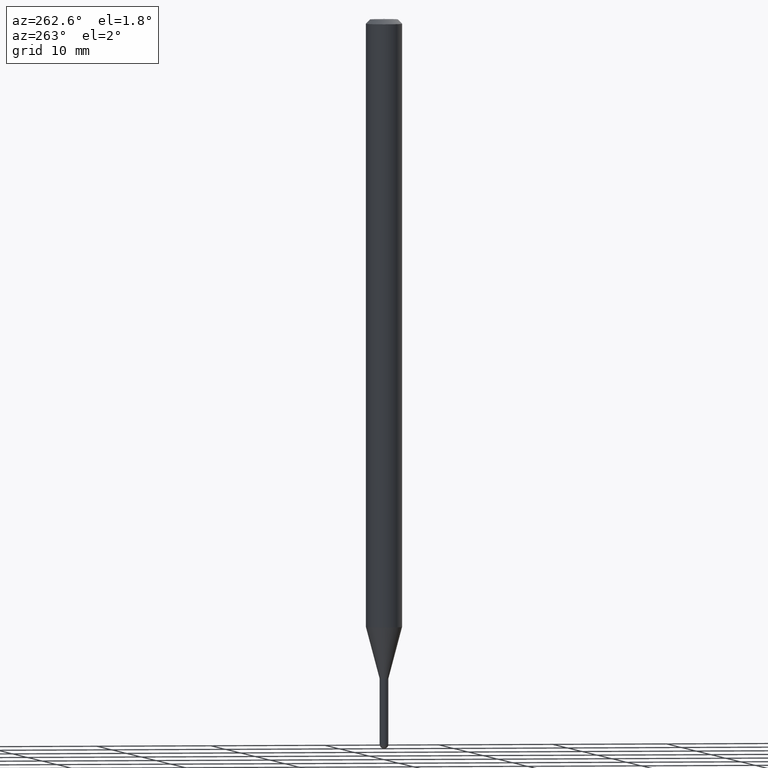
[diagram: clean part render]
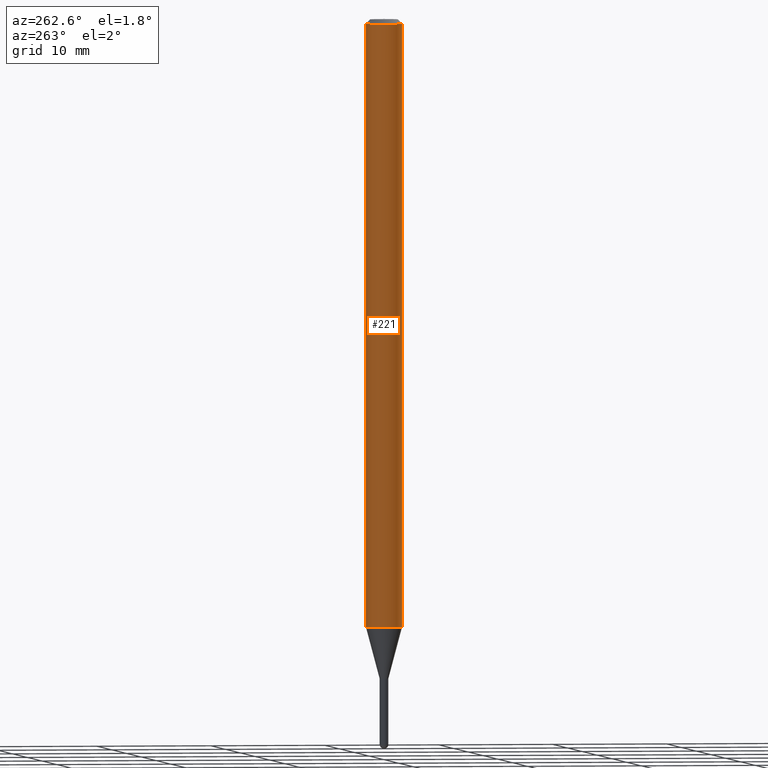
[diagram: same view with one face highlighted and labeled with its STEP entity id]
A machine part, auxiliary view. The second image highlights one B-rep face of the part: STEP entity #221.
In plain terms, the highlighted cylindrical surface (edge-blend (fillet) strip) has radius 1.5875 mm, axis along (-0, 0, 1).
Its self-contained STEP definition (entity closure, byte-faithful):
#4 = CARTESIAN_POINT ( 'NONE',  ( -4.364351673553408372E-16, -0.06250000000000728584, -2.082727586640484851 ) ) ;
#14 = EDGE_CURVE ( 'NONE', #75, #159, #77, .T. ) ;
#16 = CARTESIAN_POINT ( 'NONE',  ( 0.000000000000000000, 0.000000000000000000, 0.000000000000000000 ) ) ;
#30 = LINE ( 'NONE', #265, #414 ) ;
#31 = EDGE_LOOP ( 'NONE', ( #278, #396, #360, #256 ) ) ;
#42 = FACE_OUTER_BOUND ( 'NONE', #31, .T. ) ;
#59 = AXIS2_PLACEMENT_3D ( 'NONE', #287, #448, #96 ) ;
#75 = VERTEX_POINT ( 'NONE', #4 ) ;
#77 = LINE ( 'NONE', #193, #310 ) ;
#96 = DIRECTION ( 'NONE',  ( -6.982962677686265922E-15, -1.000000000000000000, 3.483106191921935554E-15 ) ) ;
#117 = AXIS2_PLACEMENT_3D ( 'NONE', #16, #329, #358 ) ;
#130 = CARTESIAN_POINT ( 'NONE',  ( 4.440892098501133005E-16, 0.06249999999999271416, -2.082727586640485296 ) ) ;
#132 = CARTESIAN_POINT ( 'NONE',  ( -4.364351673553912750E-16, -0.06250000000000005551, -0.01499999999999979128 ) ) ;
#159 = VERTEX_POINT ( 'NONE', #132 ) ;
#168 = AXIS2_PLACEMENT_3D ( 'NONE', #209, #398, #207 ) ;
#172 = VERTEX_POINT ( 'NONE', #130 ) ;
#181 = EDGE_CURVE ( 'NONE', #172, #75, #391, .T. ) ;
#186 = DIRECTION ( 'NONE',  ( -2.445531870112414525E-29, 3.491391027709908326E-15, 1.000000000000000000 ) ) ;
#193 = CARTESIAN_POINT ( 'NONE',  ( -4.364351673553916201E-16, -0.06250000000000000000, 2.182119392318692457E-16 ) ) ;
#207 = DIRECTION ( 'NONE',  ( -6.982962677686265922E-15, -1.000000000000000000, 4.370956789862821150E-15 ) ) ;
#209 = CARTESIAN_POINT ( 'NONE',  ( 5.093376689891620296E-29, -7.271616409160498436E-15, -2.082727586640484851 ) ) ;
#211 = EDGE_CURVE ( 'NONE', #469, #159, #482, .T. ) ;
#212 = CYLINDRICAL_SURFACE ( 'NONE', #117, 0.06250000000000000000 ) ;
#221 = ADVANCED_FACE ( 'NONE', ( #42 ), #212, .T. ) ;
#256 = ORIENTED_EDGE ( 'NONE', *, *, #211, .F. ) ;
#265 = CARTESIAN_POINT ( 'NONE',  ( 4.440892098500625669E-16, 0.06250000000000000000, -2.182119392318692457E-16 ) ) ;
#278 = ORIENTED_EDGE ( 'NONE', *, *, #416, .F. ) ;
#287 = CARTESIAN_POINT ( 'NONE',  ( 3.668297805168624188E-31, -5.237086541564864708E-17, -0.01500000000000000812 ) ) ;
#310 = VECTOR ( 'NONE', #470, 39.37007874015748143 ) ;
#329 = DIRECTION ( 'NONE',  ( -2.445531870112414525E-29, 3.491391027709907932E-15, 1.000000000000000000 ) ) ;
#358 = DIRECTION ( 'NONE',  ( -6.982962677686265922E-15, -1.000000000000000000, 3.491391027709907932E-15 ) ) ;
#360 = ORIENTED_EDGE ( 'NONE', *, *, #14, .T. ) ;
#391 = CIRCLE ( 'NONE', #168, 0.06250000000000000000 ) ;
#396 = ORIENTED_EDGE ( 'NONE', *, *, #181, .T. ) ;
#398 = DIRECTION ( 'NONE',  ( -2.445531870112414525E-29, 3.491391027709907932E-15, 1.000000000000000000 ) ) ;
#414 = VECTOR ( 'NONE', #186, 39.37007874015748143 ) ;
#416 = EDGE_CURVE ( 'NONE', #172, #469, #30, .T. ) ;
#448 = DIRECTION ( 'NONE',  ( -2.445531870112414525E-29, 3.491391027709907932E-15, 1.000000000000000000 ) ) ;
#464 = CARTESIAN_POINT ( 'NONE',  ( 4.440892098501138921E-16, 0.06249999999999995143, -0.01500000000000022669 ) ) ;
#469 = VERTEX_POINT ( 'NONE', #464 ) ;
#470 = DIRECTION ( 'NONE',  ( -2.445531870112414525E-29, 3.491391027709908326E-15, 1.000000000000000000 ) ) ;
#482 = CIRCLE ( 'NONE', #59, 0.06250000000000000000 ) ;